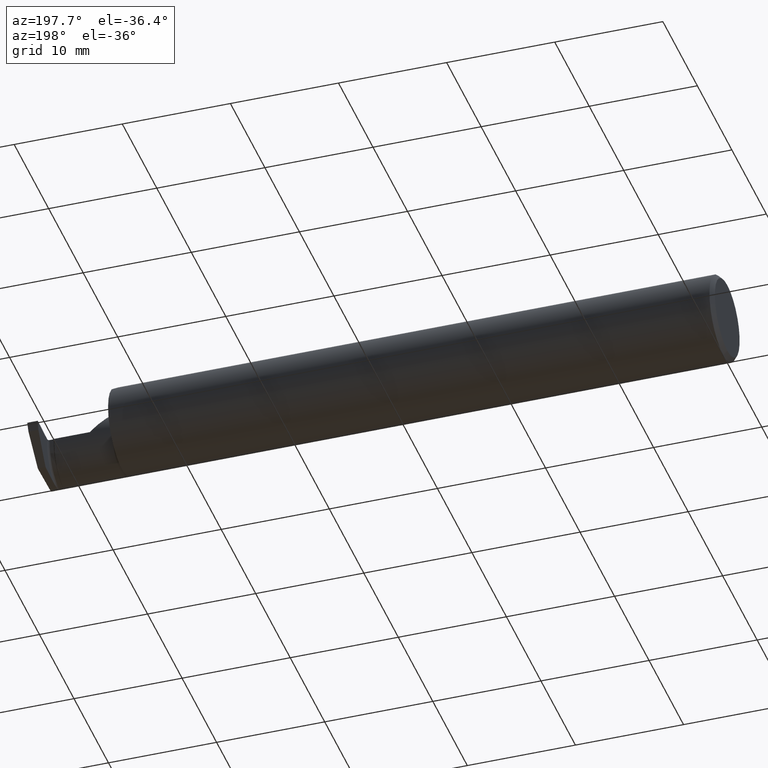
[diagram: clean part render]
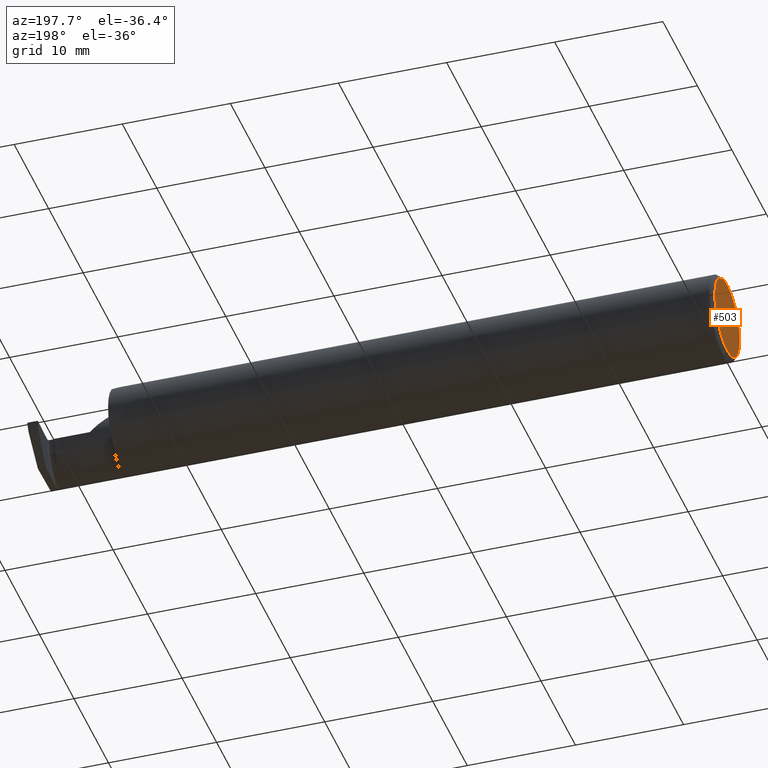
[diagram: same view with one face highlighted and labeled with its STEP entity id]
A machine part, auxiliary view. The second image highlights one B-rep face of the part: STEP entity #503.
In plain terms, the highlighted planar face has unit normal (1, 0, 0).
Its self-contained STEP definition (entity closure, byte-faithful):
#46 = CARTESIAN_POINT ( 'NONE',  ( 0.000000000000000000, 0.000000000000000000, 0.000000000000000000 ) ) ;
#140 = VERTEX_POINT ( 'NONE', #800 ) ;
#196 = DIRECTION ( 'NONE',  ( 0.000000000000000000, 0.000000000000000000, -1.000000000000000000 ) ) ;
#230 = CIRCLE ( 'NONE', #786, 0.1410999999999999754 ) ;
#234 = DIRECTION ( 'NONE',  ( -1.000000000000000000, -0.000000000000000000, -0.000000000000000000 ) ) ;
#261 = CIRCLE ( 'NONE', #462, 0.1410999999999999754 ) ;
#273 = ORIENTED_EDGE ( 'NONE', *, *, #668, .T. ) ;
#333 = DIRECTION ( 'NONE',  ( -1.000000000000000000, -0.000000000000000000, -0.000000000000000000 ) ) ;
#462 = AXIS2_PLACEMENT_3D ( 'NONE', #675, #234, #767 ) ;
#503 = ADVANCED_FACE ( 'NONE', ( #644 ), #727, .F. ) ;
#557 = VERTEX_POINT ( 'NONE', #964 ) ;
#569 = DIRECTION ( 'NONE',  ( 1.000000000000000000, 0.000000000000000000, 0.000000000000000000 ) ) ;
#643 = CARTESIAN_POINT ( 'NONE',  ( 0.000000000000000000, 0.000000000000000000, 0.000000000000000000 ) ) ;
#644 = FACE_OUTER_BOUND ( 'NONE', #930, .T. ) ;
#668 = EDGE_CURVE ( 'NONE', #140, #557, #261, .T. ) ;
#675 = CARTESIAN_POINT ( 'NONE',  ( 0.000000000000000000, 0.000000000000000000, 0.000000000000000000 ) ) ;
#727 = PLANE ( 'NONE',  #769 ) ;
#763 = ORIENTED_EDGE ( 'NONE', *, *, #801, .T. ) ;
#767 = DIRECTION ( 'NONE',  ( 0.000000000000000000, 0.000000000000000000, 1.000000000000000000 ) ) ;
#769 = AXIS2_PLACEMENT_3D ( 'NONE', #46, #569, #196 ) ;
#786 = AXIS2_PLACEMENT_3D ( 'NONE', #643, #333, #945 ) ;
#800 = CARTESIAN_POINT ( 'NONE',  ( 0.000000000000000000, 0.000000000000000000, -0.1410999999999999754 ) ) ;
#801 = EDGE_CURVE ( 'NONE', #557, #140, #230, .T. ) ;
#930 = EDGE_LOOP ( 'NONE', ( #273, #763 ) ) ;
#945 = DIRECTION ( 'NONE',  ( 0.000000000000000000, 0.000000000000000000, 1.000000000000000000 ) ) ;
#964 = CARTESIAN_POINT ( 'NONE',  ( 0.000000000000000000, 1.819825143532966472E-17, 0.1410999999999999754 ) ) ;